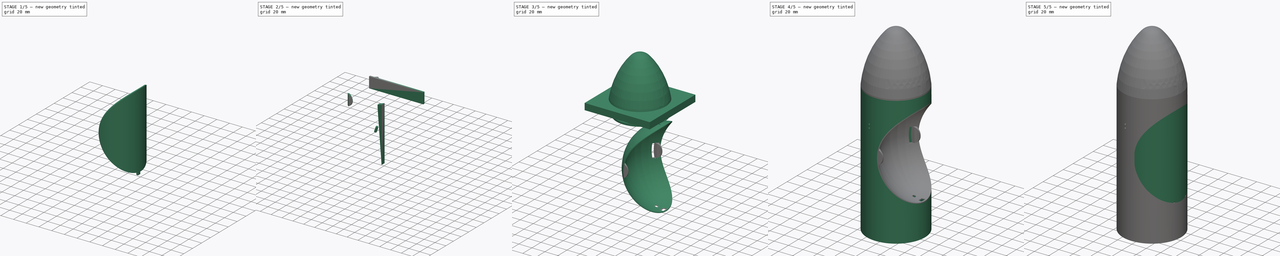
[diagram: build sequence overview — one tinted view per stage of 5, left to right]
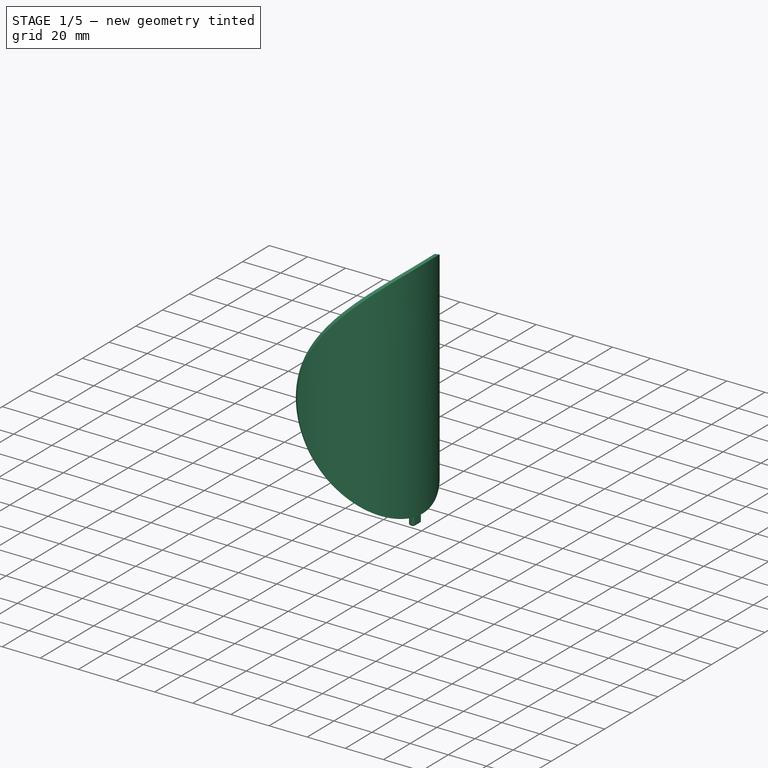
[diagram: stage 1 of 5 — iso view after this stage's code; geometry added in this stage tinted green]
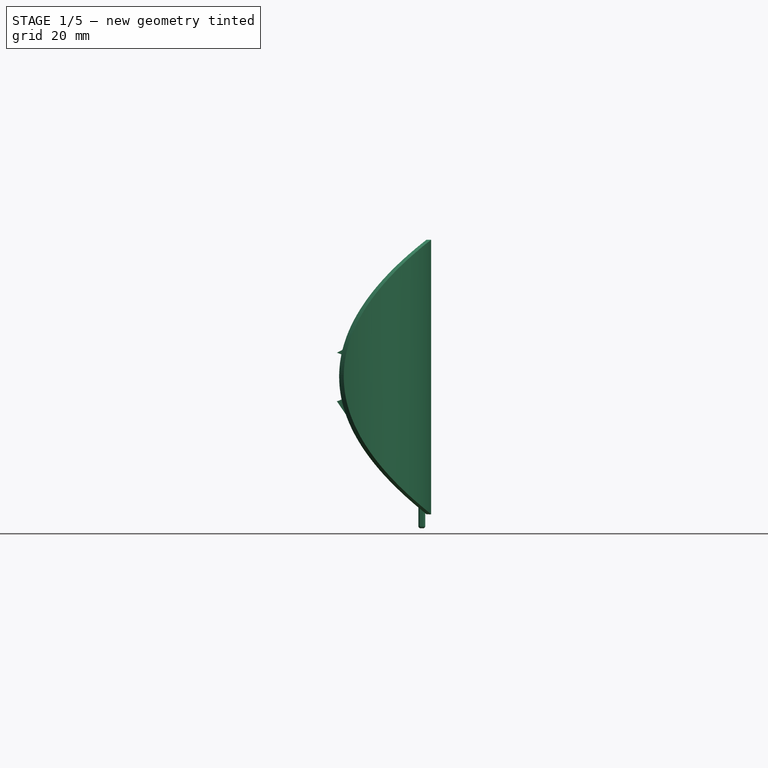
[diagram: stage 1 of 5 — front view after this stage's code; geometry added in this stage tinted green]
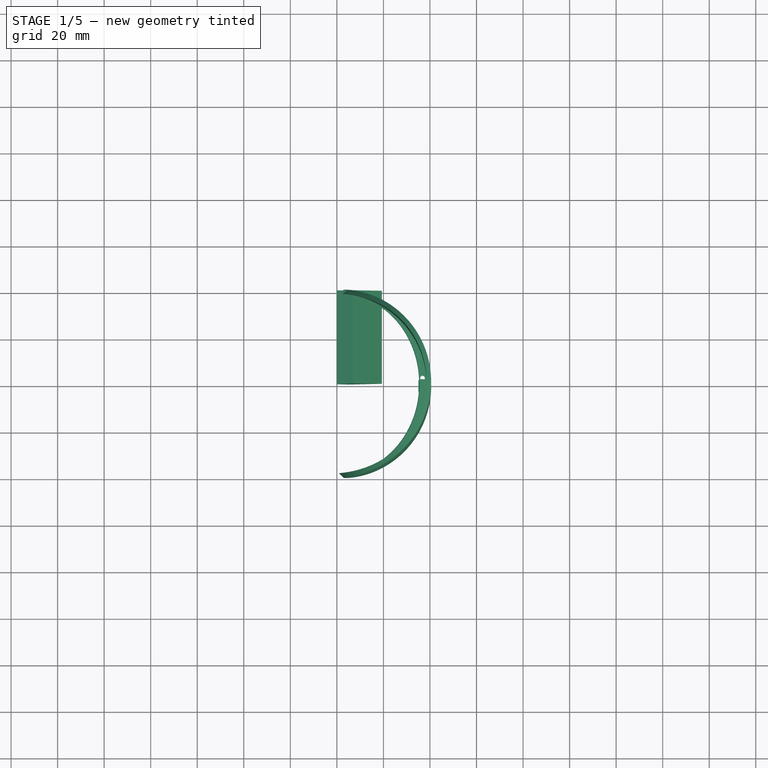
[diagram: stage 1 of 5 — top view after this stage's code; geometry added in this stage tinted green]
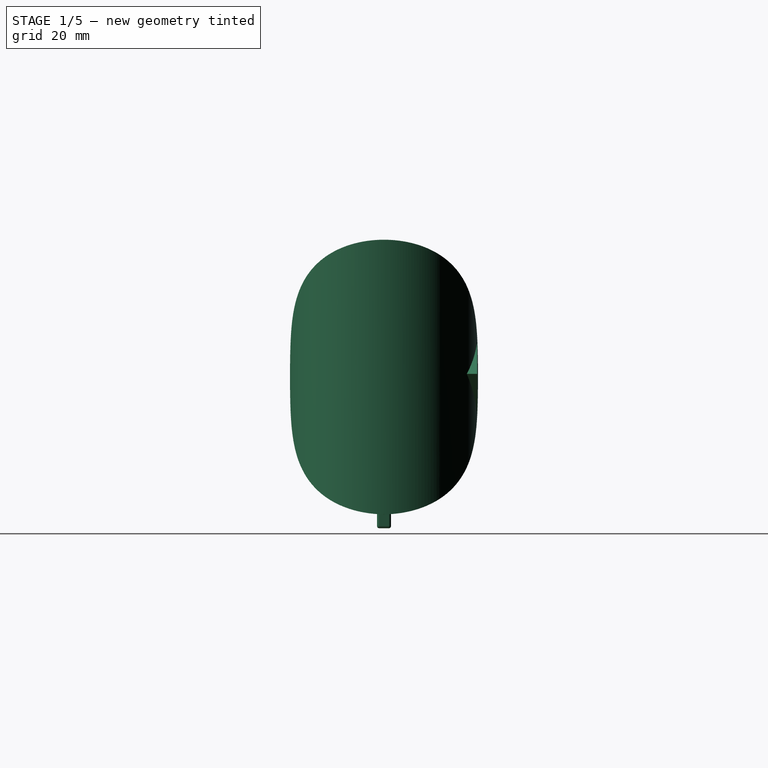
[diagram: stage 1 of 5 — right view after this stage's code; geometry added in this stage tinted green]
FCSTD DOCUMENT  (FreeCAD 0.16R6706 (Git))
Label: Phoenix3D_Apollinaris
License: All rights reserved
LicenseURL: http://en.wikipedia.org/wiki/All_rights_reserved
objects: Sketcher::SketchObject×21, Part::Cut×19, Part::MultiFuse×13, PartDesign::Pad×9, Part::Cylinder×9, PartDesign::Revolution×7, Part::Box×5, PartDesign::Fillet×5, Part::MultiCommon×3, PartDesign::Pocket×3, Part::Mirroring×2, Part::Wedge×2, Part::Fillet×2, Part::Helix×2, Part::Sweep×2
note: 123 computed .brp shape members not serialized (recipe doc carries the construction recipe); baked Part::Feature solids carry a one-line shape summary decoded from their .brp

FEATURE [Sketcher::SketchObject] Sketch022
  Placement = pos=(0,0,0) rot=(1,0,0;1.5708rad)
  sketch-geometry (7):
    g0: ArcOfEllipse CenterX=38.7894 CenterY=104.999 CenterZ=0 NormalX=0 NormalY=0 NormalZ=1 MajorRadius=59.003 MinorRadius=55.0157 AngleXU=1.54693 StartAngle=3.17101 EndAngle=6.30495
    g1: LineSegment [constr] StartX=-16.2106 StartY=106.312 StartZ=0 EndX=93.7894 EndY=103.687 EndZ=0
    g2: GeomPoint [constr] X=39.2982 Y=126.315 Z=0
    g3: GeomPoint [constr] X=38.2807 Y=83.6834 Z=0
    g4: LineSegment [constr] StartX=39.0001 StartY=46 StartZ=0 EndX=39.0001 EndY=164 EndZ=0
    g5: LineSegment [constr] StartX=92.7894 StartY=105 StartZ=0 EndX=-15 EndY=105 EndZ=0
    g6: LineSegment StartX=39.0001 StartY=164 StartZ=0 EndX=39.0001 EndY=46 EndZ=0
  constraints (12):
    c: InternalAlignment(g1,g0)
    c: InternalAlignment(g2,g0)
    c: InternalAlignment(g3,g0)
    c: DistanceY(g0,g0) = 118
    c: DistanceX(g0,g1) = 55
    c: DistanceX(g5,g1) = 1
    c: DistanceY(g-1,g0) = 164
    c: Coincident(g4,g0)
    c: Coincident(g0,g4)
    c: Coincident(g6,g0)
    c: Coincident(g6,g0)
    c: Vertical(g6)
FEATURE [Part::Cylinder] Cylinder006  label="Zylinder003"
  Angle = 360
  Height = 180
  Placement = pos=(-1,0,0) rot=(0,0,1;0rad)
  Radius = 40.5
FEATURE [PartDesign::Revolution] Revolution005
  Angle = 360
  Axis = (0,0,118)
  Base = (39.0001,0,46)
  Placement = pos=(0,0,0) rot=(1,0,0;1.5708rad)
  ReferenceAxis = -> Sketch022 [Axis1]
  Reversed = true
  Sketch = -> Sketch022
FEATURE [Part::MultiCommon] Common001  label="Tür001"
  Placement = pos=(1,0,0) rot=(0,0,1;0rad)
  Shapes = -> [Revolution005,Cylinder006]
FEATURE [Part::Cylinder] Cylinder007  label="Zylinder004"
  Angle = 360
  Height = 180
  Radius = 38.5
FEATURE [PartDesign::Fillet] Fillet005
  Placement = pos=(35,-3,40) rot=(0,0,1;0rad)
  Radius = 1
FEATURE [Part::Cut] Cut025
  Base = -> Common001
  Tool = -> Cylinder007
FEATURE [Sketcher::SketchObject] Sketch024
  Placement = pos=(1.2,0,108) rot=(0,0,1;0rad)
  sketch-geometry (2):
    g0: Circle CenterX=35.6 CenterY=2.5 CenterZ=0 NormalX=0 NormalY=0 NormalZ=1 Radius=1
    g1: Circle CenterX=35.6 CenterY=-2.5 CenterZ=0 NormalX=0 NormalY=0 NormalZ=1 Radius=1
  constraints (5):
    c: Symmetric(g1,g0,g-1)
    c: DistanceY(g1,g0) = 5
    c: Equal(g0,g1)
    c: Radius(g0) = 1
    c: DistanceX(g-1,g0) = 35.6
FEATURE [PartDesign::Pocket] Pocket001
  Length = 5
  Placement = pos=(1.2,0,105) rot=(0,0,1;0rad)
  Sketch = -> Sketch024
  Type = 0
FEATURE [Part::Fillet] Fillet006
  Base = -> Pocket001
  Edges = 2 edges r=0.5: [Edge3,Edge4]
FEATURE [Sketcher::SketchObject] Sketch025
  Placement = pos=(34,0,0) rot=(0.57735,0.57735,0.57735;2.0944rad)
  sketch-geometry (6):
    g0: LineSegment StartX=-12.5 StartY=46.5 StartZ=0 EndX=-11 EndY=49.0981 EndZ=0
    g1: LineSegment StartX=-11 StartY=49.0981 StartZ=0 EndX=-9.5 EndY=46.5 EndZ=0
    g2: LineSegment StartX=-9.5 StartY=46.5 StartZ=0 EndX=-12.5 EndY=46.5 EndZ=0
    g3: LineSegment StartX=9.5 StartY=46.5 StartZ=0 EndX=11 EndY=49.0981 EndZ=0
    g4: LineSegment StartX=11 StartY=49.0981 StartZ=0 EndX=12.5 EndY=46.5 EndZ=0
    g5: LineSegment StartX=12.5 StartY=46.5 StartZ=0 EndX=9.5 EndY=46.5 EndZ=0
  constraints (17):
    c: Coincident(g0,g1)
    c: Coincident(g1,g2)
    c: Coincident(g2,g0)
    c: Horizontal(g2)
    c: Equal(g2,g0)
    c: Equal(g0,g1)
    c: DistanceX(g2,g2) = 3
    c: Coincident(g3,g4)
    c: Coincident(g4,g5)
    c: Coincident(g5,g3)
    c: Equal(g4,g3)
    c: Equal(g3,g5)
    c: Horizontal(g5)
    c: Equal(g5,g2)
    c: Symmetric(g3,g1,g-2)
    c: DistanceY(g-1,g1) = 46.5
    c: DistanceX(g1,g-1) = 9.5
FEATURE [PartDesign::Pad] Pad011  label="Ritze001"
  Length = 10
  Length2 = 100
  Placement = pos=(34,0,0) rot=(0.57735,0.57735,0.57735;2.0944rad)
  Sketch = -> Sketch025
  Type = 0
FEATURE [Part::Cut] Cut026
  Base = -> Cut025
  Tool = -> Pad011
FEATURE [Sketcher::SketchObject] Sketch027
  Placement = pos=(0,0,0) rot=(1,0,0;1.5708rad)
  sketch-geometry (10):
    g0: LineSegment [constr] StartX=-16.9433 StartY=105 StartZ=0 EndX=26.7927 EndY=105 EndZ=0
    g1: ArcOfEllipse CenterX=-2.69573 CenterY=105 CenterZ=0 NormalX=0 NormalY=0 NormalZ=1 MajorRadius=10.7493 MinorRadius=10.7231 AngleXU=1.5708 StartAngle=3.39571 EndAngle=6.02906
    g2: LineSegment [constr] StartX=-2.69573 StartY=115.749 StartZ=0 EndX=-2.69573 EndY=94.2507 EndZ=0
    g3: LineSegment [constr] StartX=-13.4188 StartY=105 StartZ=0 EndX=8.02735 EndY=105 EndZ=0
    g4: GeomPoint [constr] X=-2.69573 Y=105.751 Z=0
    g5: GeomPoint [constr] X=-2.69573 Y=104.249 Z=0
    g6: LineSegment StartX=0 StartY=115.404 StartZ=0 EndX=6.87923 EndY=119.123 EndZ=0
    g7: LineSegment StartX=6.87923 StartY=119.123 StartZ=0 EndX=19.3389 EndY=106.345 EndZ=0
    g8: LineSegment StartX=19.3389 StartY=106.345 StartZ=0 EndX=4.71785 EndY=87.5924 EndZ=0
    g9: LineSegment StartX=4.71785 StartY=87.5924 StartZ=0 EndX=0 EndY=94.5959 EndZ=0
  constraints (12):
    c: Horizontal(g0)
    c: DistanceY(g-1,g0) = 105
    c: InternalAlignment(g2-g5 -> g1) x4
    c: PointOnObject(g1,g0)
    c: Horizontal(g3)
    c: PointOnObject(g1,g-2)
    c: PointOnObject(g1,g-2)
    c: Coincident(g6,g1)
    c: Coincident(g6,g7)
    c: Coincident(g7,g8)
    c: Coincident(g8,g9)
    c: Coincident(g9,g1)
FEATURE [PartDesign::Pad] Pad012
  Length = 40
  Length2 = 100
  Placement = pos=(0,0,0) rot=(1,0,0;1.5708rad)
  Reversed = true
  Sketch = -> Sketch027
  Type = 0
FEATURE [Sketcher::SketchObject] Sketch028
  Placement = pos=(0,0,0) rot=(1,0,0;1.5708rad)
  sketch-geometry (7):
    g0: ArcOfEllipse CenterX=38.7894 CenterY=104.999 CenterZ=0 NormalX=0 NormalY=0 NormalZ=1 MajorRadius=59.003 MinorRadius=55.0157 AngleXU=1.54693 StartAngle=3.17101 EndAngle=6.30495
    g1: LineSegment [constr] StartX=-16.2106 StartY=106.312 StartZ=0 EndX=93.7894 EndY=103.687 EndZ=0
    g2: GeomPoint [constr] X=39.2982 Y=126.315 Z=0
    g3: GeomPoint [constr] X=38.2807 Y=83.6834 Z=0
    g4: LineSegment [constr] StartX=39.0001 StartY=46 StartZ=0 EndX=39.0001 EndY=164 EndZ=0
    g5: LineSegment [constr] StartX=92.7894 StartY=105 StartZ=0 EndX=-15 EndY=105 EndZ=0
    g6: LineSegment StartX=39.0001 StartY=164 StartZ=0 EndX=39.0001 EndY=46 EndZ=0
  constraints (12):
    c: InternalAlignment(g1,g0)
    c: InternalAlignment(g2,g0)
    c: InternalAlignment(g3,g0)
    c: DistanceY(g0,g0) = 118
    c: DistanceX(g0,g1) = 55
    c: DistanceX(g5,g1) = 1
    c: DistanceY(g-1,g0) = 164
    c: Coincident(g4,g0)
    c: Coincident(g0,g4)
    c: Coincident(g6,g0)
    c: Coincident(g6,g0)
    c: Vertical(g6)
FEATURE [Part::Cylinder] Cylinder008  label="Zylinder005"
  Angle = 360
  Height = 180
  Placement = pos=(-1,0,0) rot=(0,0,1;0rad)
  Radius = 40.5
FEATURE [PartDesign::Revolution] Revolution006
  Angle = 360
  Axis = (0,0,118)
  Base = (39.0001,0,46)
  Placement = pos=(0,0,0) rot=(1,0,0;1.5708rad)
  ReferenceAxis = -> Sketch028 [Axis1]
  Reversed = true
  Sketch = -> Sketch028
FEATURE [Part::MultiCommon] Common002  label="Tür002"
  Placement = pos=(1,0,0) rot=(0,0,1;0rad)
  Shapes = -> [Revolution006,Cylinder008]
FEATURE [Part::Cylinder] Cylinder009  label="Zylinder006"
  Angle = 360
  Height = 180
  Radius = 38.5
FEATURE [Part::Cut] Cut029
  Base = -> Common002
  Tool = -> Cylinder009
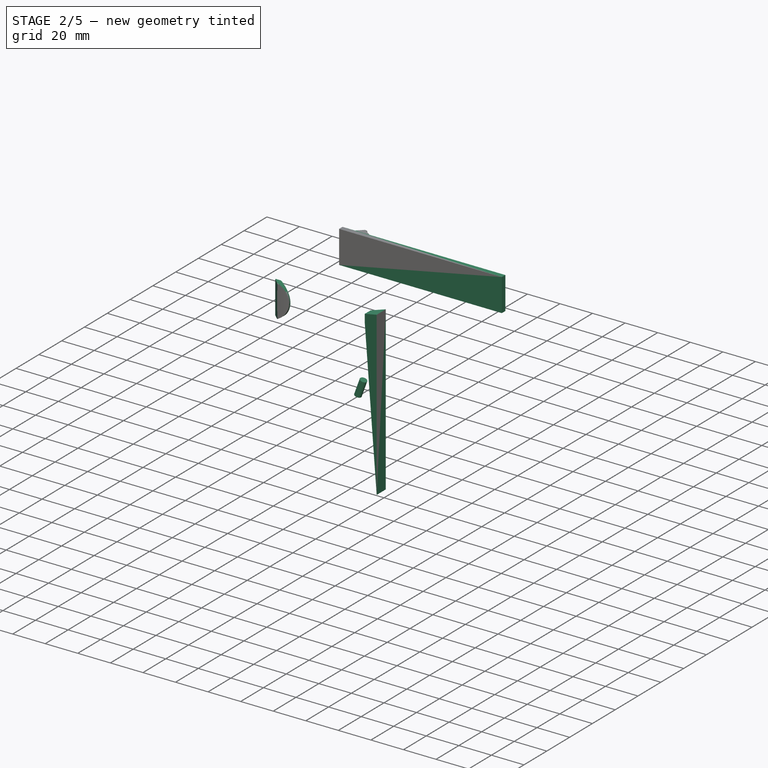
[diagram: stage 2 of 5 — iso view after this stage's code; geometry added in this stage tinted green]
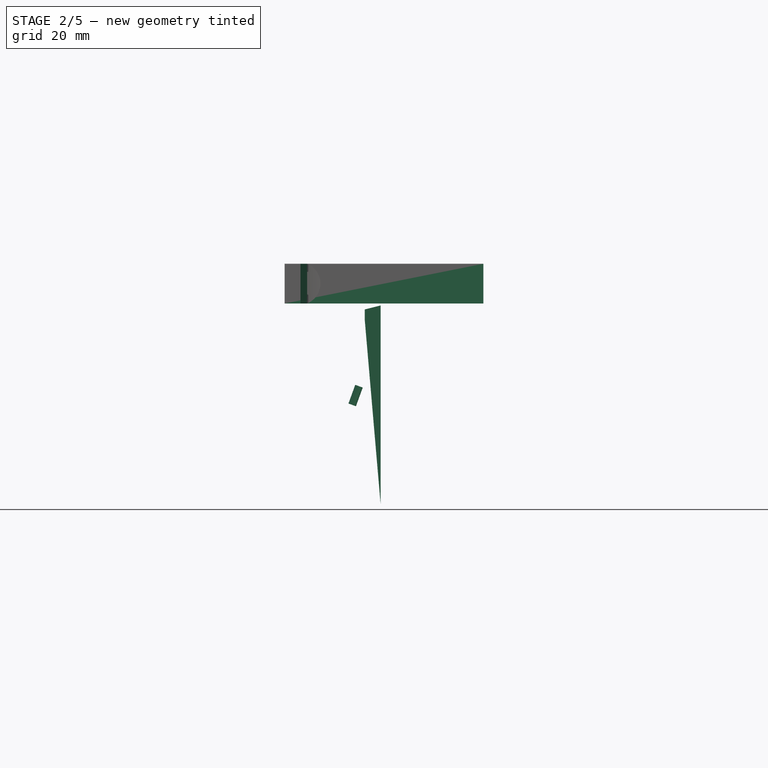
[diagram: stage 2 of 5 — front view after this stage's code; geometry added in this stage tinted green]
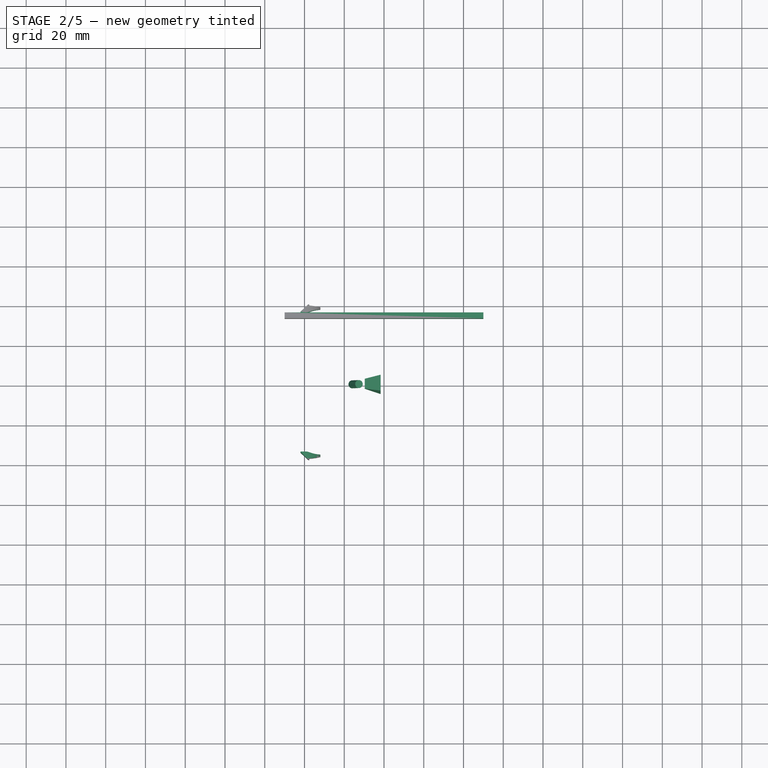
[diagram: stage 2 of 5 — top view after this stage's code; geometry added in this stage tinted green]
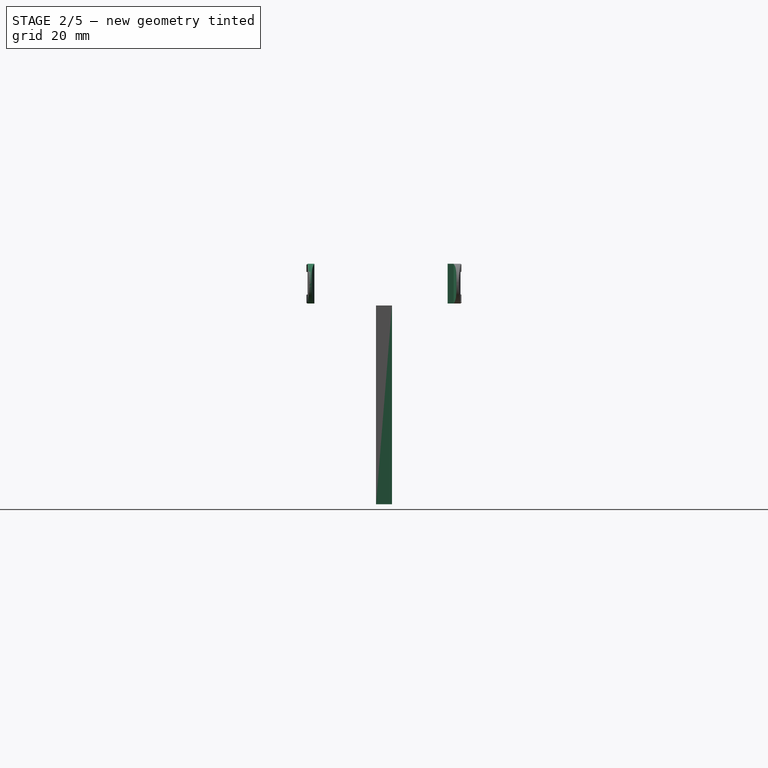
[diagram: stage 2 of 5 — right view after this stage's code; geometry added in this stage tinted green]
FEATURE [Part::Box] Box  label="Federlasche1"
  Height = 20
  Length = 100
  Placement = pos=(-10,32,95) rot=(0,0,1;0rad)
  Width = 3
FEATURE [Part::Wedge] Wedge003  label="Keil003"
  Placement = pos=(38.3,4,94) rot=(0.707107,-0.707107,0;3.14159rad)
  X2max = 7
  X2min = 2
  Xmax = 8
  Xmin = 0
  Ymax = 8
  Ymin = 0
  Z2max = 7
  Z2min = 2
  Zmax = 100
  Zmin = 0
FEATURE [Part::Cylinder] Cylinder005  label="Zylinder002"
  Angle = 360
  Height = 10
  Placement = pos=(24,0,44) rot=(0,1,0;0.349066rad)
  Radius = 2
FEATURE [Part::Box] Box003  label="Würfel001"
  Height = 20
  Length = 10
  Placement = pos=(-2,34,95) rot=(0,0,1;0rad)
  Width = 5
FEATURE [Part::Box] Box004  label="Federlasche003"
  Height = 20
  Length = 100
  Placement = pos=(-10,32,95) rot=(0,0,1;0rad)
  Width = 3
FEATURE [Part::Cut] Cut024
  Base = -> Box003
  Tool = -> Box004
FEATURE [PartDesign::Fillet] Fillet004
  Placement = pos=(0,0,51) rot=(0,0,1;0rad)
  Radius = 1
FEATURE [Part::MultiFuse] Fusion016  label="Haken001"
  Shapes = -> [Fillet004,Fillet005]
FEATURE [Part::MultiFuse] Fusion017  label="Fallschirmtüre001"
  Shapes = -> [Cut026,Fusion016,Fillet006]
FEATURE [Part::Cut] Cut027
  Base = -> Cut024
  Tool = -> Fusion017
FEATURE [Sketcher::SketchObject] Sketch026
  ExternalGeometry = -> [Cut027]
  Placement = pos=(0,0,95) rot=(1,0,0;3.14159rad)
  Support = -> Cut027 [Face4]
  sketch-geometry (8):
    g0: LineSegment StartX=-2.23089 StartY=-39.1289 StartZ=0 EndX=-2.23089 EndY=-35.1474 EndZ=0
    g1: LineSegment StartX=-2.23089 StartY=-35.1474 StartZ=0 EndX=2.01028 EndY=-39.1289 EndZ=0
    g2: LineSegment StartX=2.01028 StartY=-39.1289 StartZ=0 EndX=-2.23089 EndY=-39.1289 EndZ=0
    g3: LineSegment StartX=-83.3931 StartY=2.54093 StartZ=0 EndX=1.56733 EndY=-35 EndZ=0
    g4: LineSegment StartX=8 StartY=-36.43 StartZ=0 EndX=41.4372 EndY=-37.146 EndZ=0
    g5: LineSegment StartX=41.4372 StartY=-37.146 StartZ=0 EndX=13.4846 EndY=-30.7703 EndZ=0
    g6: LineSegment StartX=13.4846 StartY=-30.7703 StartZ=0 EndX=-83.3931 EndY=2.54093 EndZ=0
    g7: ArcOfCircle CenterX=8.35983 CenterY=-19.6276 CenterZ=0 NormalX=0 NormalY=0 NormalZ=1 Radius=16.8062 StartAngle=4.29632 EndAngle=4.69098
  constraints (12):
    c: Vertical(g0)
    c: Coincident(g0,g1)
    c: Coincident(g1,g2)
    c: Coincident(g2,g0)
    c: Horizontal(g2)
    c: Coincident(g4,g5)
    c: Coincident(g5,g6)
    c: Coincident(g3,g6)
    c: Tangent(g4,g7) = -1.5708
    c: Tangent(g3,g7) = -1.5708
    c: PointOnObject(g4,g-4)
    c: PointOnObject(g3,g-3)
FEATURE [PartDesign::Pocket] Pocket002
  Length = 20
  Sketch = -> Sketch026
  Type = 0
FEATURE [PartDesign::Fillet] Fillet
  Base = -> Pocket002 [Edge24]
  Radius = 5
FEATURE [Part::Cut] Cut028
  Base = -> Fillet
  Tool = -> Pad012
FEATURE [Part::Cut] Cut030  label="Seitenlasche"
  Base = -> Cut028
  Tool = -> Cut029
FEATURE [Part::Mirroring] Part__Mirroring001  label="Seitenlasche (Mirror #2)"
  Base = (0,0,0)
  Normal = (0,1,0)
  Source = -> Cut030
FEATURE [Part::MultiFuse] Fusion018
  Shapes = -> [Part__Mirroring001,Cut030]
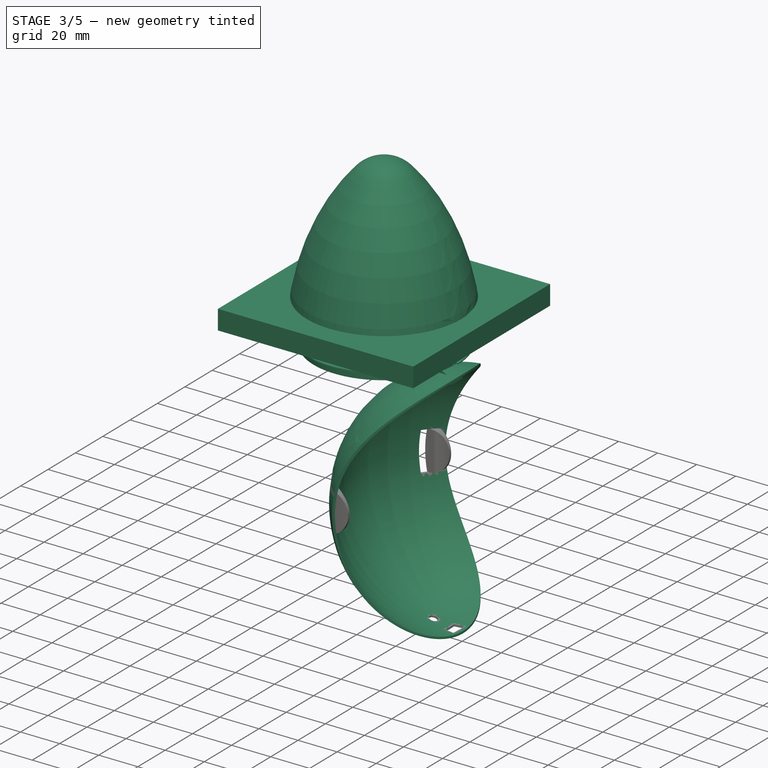
[diagram: stage 3 of 5 — iso view after this stage's code; geometry added in this stage tinted green]
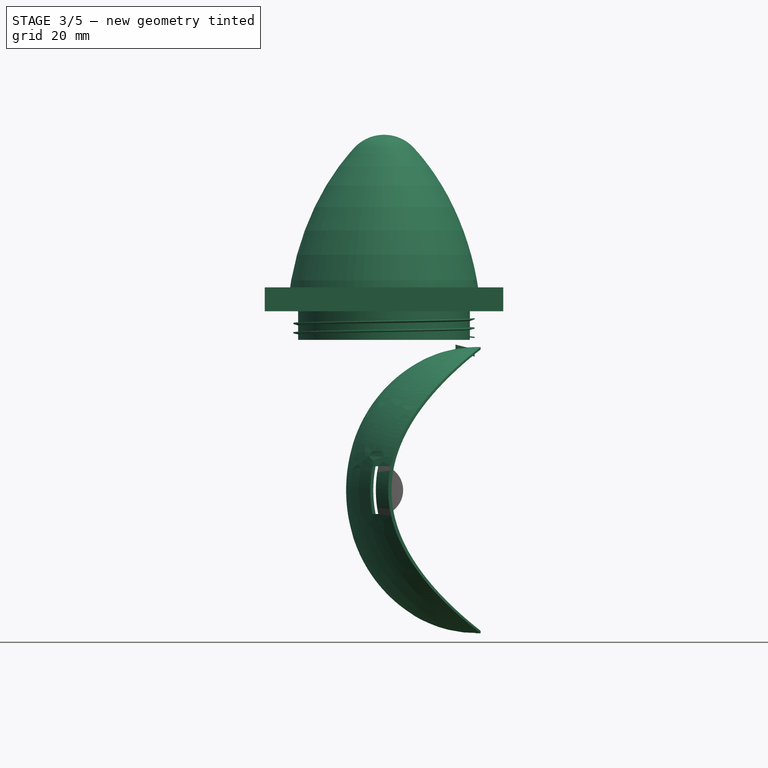
[diagram: stage 3 of 5 — front view after this stage's code; geometry added in this stage tinted green]
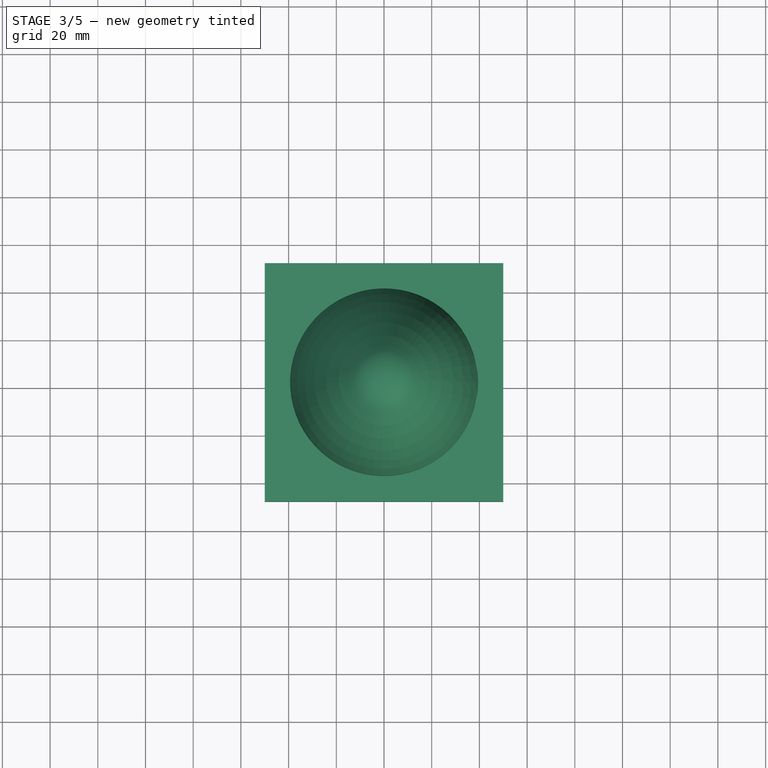
[diagram: stage 3 of 5 — top view after this stage's code; geometry added in this stage tinted green]
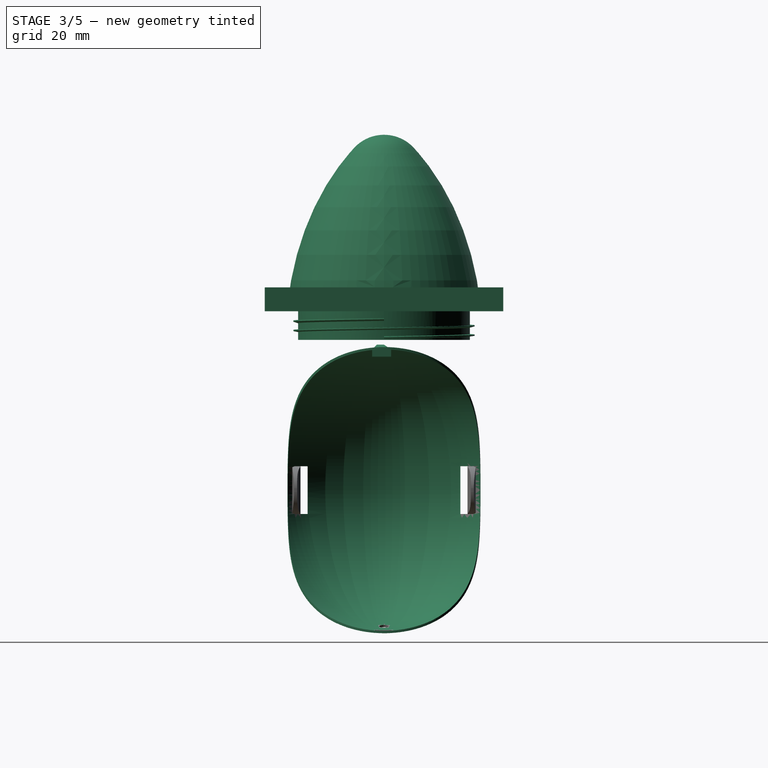
[diagram: stage 3 of 5 — right view after this stage's code; geometry added in this stage tinted green]
FEATURE [Sketcher::SketchObject] Sketch001
  Placement = pos=(0,0,0) rot=(1,0,0;1.5708rad)
  sketch-geometry (13):
    g0: LineSegment [constr] StartX=39 StartY=74.9015 StartZ=0 EndX=39 EndY=-52.964 EndZ=0
    g1: ArcOfEllipse CenterX=39 CenterY=105 CenterZ=0 NormalX=0 NormalY=0 NormalZ=1 MajorRadius=60 MinorRadius=55 AngleXU=1.5708 StartAngle=3.14159 EndAngle=6.28319
    g2: LineSegment [constr] StartX=39 StartY=165 StartZ=0 EndX=39 EndY=45 EndZ=0
    g3: LineSegment [constr] StartX=-16 StartY=105 StartZ=0 EndX=94 EndY=105 EndZ=0
    g4: GeomPoint [constr] X=39 Y=128.979 Z=0
    g5: GeomPoint [constr] X=39 Y=81.0208 Z=0
    g6: ArcOfEllipse CenterX=39 CenterY=105 CenterZ=0 NormalX=0 NormalY=0 NormalZ=1 MajorRadius=59 MinorRadius=54 AngleXU=-1.5708 StartAngle=0 EndAngle=3.14159
    g7: LineSegment [constr] StartX=39 StartY=46 StartZ=0 EndX=39 EndY=164 EndZ=0
    g8: LineSegment [constr] StartX=93 StartY=105 StartZ=0 EndX=-15 EndY=105 EndZ=0
    g9: GeomPoint [constr] X=39 Y=81.2303 Z=0
    g10: GeomPoint [constr] X=39 Y=128.77 Z=0
    g11: LineSegment StartX=39 StartY=46 StartZ=0 EndX=39 EndY=45 EndZ=0
    g12: LineSegment StartX=39 StartY=165 StartZ=0 EndX=39 EndY=164 EndZ=0
  constraints (21):
    c: Vertical(g0)
    c: DistanceX(g-1,g0) = 39
    c: InternalAlignment(g2-g5 -> g1) x4
    c: PointOnObject(g1,g0)
    c: PointOnObject(g1,g0)
    c: PointOnObject(g1,g0)
    c: Vertical(g2)
    c: DistanceY(g1,g1) = 120
    c: DistanceX(g1,g3) = 55
    c: InternalAlignment(g7-g10 -> g6) x4
    c: Coincident(g6,g1)
    c: PointOnObject(g6,g7)
    c: PointOnObject(g6,g2)
    c: PointOnObject(g6,g0)
    c: DistanceX(g8,g3) = 1
    c: DistanceY(g6,g1) = 1
    c: Coincident(g11,g6)
    c: Coincident(g11,g1)
    c: Coincident(g12,g1)
    c: Coincident(g12,g6)
    c: DistanceY(g-1,g1) = 165
FEATURE [PartDesign::Revolution] Revolution  label="Öffnung"
  Angle = 360
  Axis = (0,0,-127.866)
  Base = (39,0,74.9015)
  Placement = pos=(0,0,0) rot=(1,0,0;1.5708rad)
  ReferenceAxis = -> Sketch001 [Axis0]
  Sketch = -> Sketch001
FEATURE [Sketcher::SketchObject] Sketch002
  sketch-geometry (5):
    g0: LineSegment StartX=-100.92 StartY=65.4026 StartZ=0 EndX=100.92 EndY=65.4026 EndZ=0
    g1: LineSegment StartX=100.92 StartY=65.4026 StartZ=0 EndX=100.92 EndY=-65.4026 EndZ=0
    g2: LineSegment StartX=100.92 StartY=-65.4026 StartZ=0 EndX=-100.92 EndY=-65.4026 EndZ=0
    g3: LineSegment StartX=-100.92 StartY=-65.4026 StartZ=0 EndX=-100.92 EndY=65.4026 EndZ=0
    g4: Circle CenterX=0 CenterY=0 CenterZ=0 NormalX=0 NormalY=0 NormalZ=1 Radius=40.5
  constraints (12):
    c: Coincident(g0,g1)
    c: Coincident(g1,g2)
    c: Coincident(g2,g3)
    c: Coincident(g3,g0)
    c: Horizontal(g0)
    c: Horizontal(g2)
    c: Vertical(g1)
    c: Vertical(g3)
    c: Symmetric(g0,g2,g-1)
    c: Symmetric(g0,g0,g-2)
    c: Coincident(g4,g-1)
    c: Radius(g4) = 40.5
FEATURE [PartDesign::Pad] Pad001
  Length = 190
  Length2 = 100
  Sketch = -> Sketch002
  Type = 0
FEATURE [Part::Cut] Cut  label="Innenseite"
  Base = -> Revolution
  Tool = -> Pad001
FEATURE [Part::Box] Box001  label="Federlasche2"
  Height = 20
  Length = 100
  Placement = pos=(-10,-35,95) rot=(0,0,1;0rad)
  Width = 3
FEATURE [Part::Cut] Cut002
  Base = -> Cut
  Tool = -> Box
FEATURE [Part::Cut] Cut003  label="Innenseite001"
  Base = -> Cut002
  Tool = -> Box001
FEATURE [Part::Wedge] Wedge002  label="Keil002"
  Placement = pos=(38,-5,161) rot=(0,0,1;1.5708rad)
  X2max = 5
  X2min = 2
  Xmax = 8
  Xmin = 0
  Ymax = 8
  Ymin = 0
  Z2max = 5
  Z2min = 2
  Zmax = 3
  Zmin = 0
FEATURE [Part::Cut] Cut010
  Base = -> Cut003
  Tool = -> Wedge003
FEATURE [Part::MultiFuse] Fusion012  label="Cut011"
  Shapes = -> [Wedge002,Cut010]
FEATURE [Part::Cut] Cut022  label="Fallschirmkammer"
  Base = -> Fusion012
  Tool = -> Cylinder005
FEATURE [Part::Box] Box002  label="Würfel"
  Height = 10
  Length = 100
  Placement = pos=(-50,-50,180) rot=(0,0,1;0rad)
  Width = 100
FEATURE [Part::Helix] Helix001
  Angle = 0
  Height = 8
  LocalCoord = 0
  Pitch = 4
  Placement = pos=(0,0,174) rot=(0,0,1;0rad)
  Radius = 38.5
  Style = 1
FEATURE [Sketcher::SketchObject] Sketch019
  Placement = pos=(0,0,0) rot=(1,0,0;1.5708rad)
  sketch-geometry (4):
    g0: LineSegment StartX=36 StartY=174.5 StartZ=0 EndX=36 EndY=173.5 EndZ=0
    g1: LineSegment StartX=36 StartY=173.5 StartZ=0 EndX=38 EndY=173.75 EndZ=0
    g2: LineSegment StartX=38 StartY=173.75 StartZ=0 EndX=38 EndY=174.25 EndZ=0
    g3: LineSegment StartX=38 StartY=174.25 StartZ=0 EndX=36 EndY=174.5 EndZ=0
  constraints (12):
    c: Vertical(g0)
    c: Coincident(g0,g1)
    c: Coincident(g1,g2)
    c: Vertical(g2)
    c: Coincident(g2,g3)
    c: Coincident(g3,g0)
    c: DistanceY(g0,g0) = 1
    c: DistanceX(g0,g2) = 2
    c: DistanceY(g2,g2) = 0.5
    c: DistanceY(g0,g1) = 0.25
    c: DistanceY(g-1,g0) = 174.5
    c: DistanceX(g0) = 36
FEATURE [Part::Sweep] Sweep001  label="Gewinde_Spitze"
  Frenet = false
  Placement = pos=(0,0,-2) rot=(0,0,1;0rad)
  Sections = -> [Sketch019]
  Solid = true
  Spine = -> Helix001 [Edge1,Edge2]
  Transition = 1
FEATURE [Sketcher::SketchObject] Sketch020
  Placement = pos=(0,0,185) rot=(1,0,0;1.5708rad)
  sketch-geometry (21):
    g0: ArcOfEllipse CenterX=-37.5893 CenterY=-13.1434 CenterZ=0 NormalX=0 NormalY=0 NormalZ=1 MajorRadius=103.259 MinorRadius=78.7297 AngleXU=-1.5708 StartAngle=1.69843 EndAngle=2.45237
    g1: LineSegment [constr] StartX=-37.5893 StartY=-116.402 StartZ=0 EndX=-37.5893 EndY=90.1155 EndZ=0
    g2: LineSegment [constr] StartX=41.1404 StartY=-13.1434 StartZ=0 EndX=-116.319 EndY=-13.1434 EndZ=0
    g3: GeomPoint [constr] X=-37.5893 Y=-79.9569 Z=0
    g4: GeomPoint [constr] X=-37.5893 Y=53.6701 Z=0
    g5: ArcOfCircle CenterX=0 CenterY=55 CenterZ=0 NormalX=0 NormalY=0 NormalZ=1 Radius=17 StartAngle=0.746598 EndAngle=1.5708
    g6: ArcOfEllipse CenterX=-37.5893 CenterY=-13.1434 CenterZ=0 NormalX=0 NormalY=0 NormalZ=1 MajorRadius=101.215 MinorRadius=76.7391 AngleXU=-1.5708 StartAngle=1.70102 EndAngle=2.45577
    g7: LineSegment [constr] StartX=-37.5893 StartY=-114.359 StartZ=0 EndX=-37.5893 EndY=88.0719 EndZ=0
    g8: LineSegment [constr] StartX=39.1498 StartY=-13.1434 StartZ=0 EndX=-114.328 EndY=-13.1434 EndZ=0
    g9: GeomPoint [constr] X=-37.5893 Y=-79.1407 Z=0
    g10: GeomPoint [constr] X=-37.5893 Y=52.8539 Z=0
    g11: LineSegment StartX=0 StartY=70 StartZ=0 EndX=0 EndY=72 EndZ=0
    g12: LineSegment [constr] StartX=11.0101 StartY=65.1872 StartZ=0 EndX=12.4781 EndY=66.5455 EndZ=0
    g13: GeomPoint [constr] X=12.4781 Y=66.5455 Z=0
    g14: LineSegment StartX=40.5 StartY=0 StartZ=0 EndX=40.5 EndY=-2 EndZ=0
    g15: LineSegment StartX=40.5 StartY=-2 StartZ=0 EndX=36 EndY=-2 EndZ=0
    g16: LineSegment StartX=36 StartY=-2 StartZ=0 EndX=36 EndY=-14 EndZ=0
    g17: LineSegment StartX=36 StartY=-14 StartZ=0 EndX=34 EndY=-14 EndZ=0
    g18: LineSegment StartX=34 StartY=0 StartZ=0 EndX=38.5 EndY=0 EndZ=0
    g19: ArcOfCircle CenterX=0 CenterY=55 CenterZ=0 NormalX=0 NormalY=0 NormalZ=1 Radius=15 StartAngle=0.746598 EndAngle=1.5708
    g20: LineSegment StartX=34 StartY=0 StartZ=0 EndX=34 EndY=-14 EndZ=0
  constraints (48):
    c: InternalAlignment(g1-g4 -> g0) x4
    c: Horizontal(g2)
    c: PointOnObject(g0,g-1)
    c: PointOnObject(g5,g-2)
    c: DistanceY(g-1,g5) = 72
    c: PointOnObject(g5,g-2)
    c: DistanceX(g-1,g0) = 40.5
    c: DistanceY(g0,g-1) = 13.1434
    c: DistanceX(g0,g-1) = 37.5893
    c: Radius(g5) = 17
    c: InternalAlignment(g7-g10 -> g6) x4
    c: Horizontal(g8)
    c: PointOnObject(g6,g-1)
    c: DistanceX(g6,g0) = 2
    c: Coincident(g6,g0)
    c: PointOnObject(g11,g-2)
    c: Tangent(g6,g6)
    c: Angle(g6,g2) = 0.523599
    c: Coincident(g11,g5)
    c: PointOnObject(g12,g0)
    c: Perpendicular(g5,g12)
    c: Coincident(g0,g5)
    c: PointOnObject(g13,g0)
    c: PointOnObject(g13,g5)
    c: Tangent(g0,g5,g13) = -1.5708
    c: Coincident(g6,g12)
    c: Distance(g12) = 2
    c: Vertical(g14)
    c: Coincident(g14,g15)
    c: Horizontal(g15)
    c: Coincident(g15,g16)
    c: Vertical(g16)
    c: Coincident(g16,g17)
    c: Horizontal(g17)
    c: Horizontal(g18)
    c: DistanceY(g14,g14) = 2
    c: Coincident(g18,g6)
    c: Coincident(g14,g0)
    c: DistanceX(g18,g18) = 4.5
    c: Coincident(g19,g5)
    c: Coincident(g19,g11)
    c: Radius(g19) = 15
    c: Coincident(g6,g19)
    c: DistanceX(g15,g15) = 4.5
    c: Coincident(g20,g17)
    c: Vertical(g20)
    c: DistanceY(g20,g20) = 14
    c: Coincident(g20,g18)
FEATURE [PartDesign::Revolution] Revolution004  label="Spitze"
  Angle = 360
  Axis = (0,0,1)
  Base = (0,0,185)
  Placement = pos=(0,0,185) rot=(1,0,0;1.5708rad)
  ReferenceAxis = -> Sketch020 [V_Axis]
  Reversed = true
  Sketch = -> Sketch020
FEATURE [Part::MultiFuse] Fusion001  label="SpitzemitGewinde"
  Placement = pos=(0,0,-3) rot=(0,0,1;0rad)
  Shapes = -> [Revolution004,Sweep001]
FEATURE [Sketcher::SketchObject] Sketch021
  Placement = pos=(0,0,-3) rot=(1,0,0;1.5708rad)
  sketch-geometry (7):
    g0: LineSegment StartX=0 StartY=255.822 StartZ=0 EndX=7.67559 EndY=254.726 EndZ=0
    g1: LineSegment StartX=7.67559 StartY=254.726 StartZ=0 EndX=15 EndY=247.228 EndZ=0
    g2: LineSegment StartX=15 StartY=247.228 StartZ=0 EndX=15 EndY=171 EndZ=0
    g3: LineSegment StartX=15 StartY=171 StartZ=0 EndX=-15 EndY=171 EndZ=0
    g4: LineSegment StartX=-15 StartY=171 StartZ=0 EndX=-15 EndY=247.228 EndZ=0
    g5: LineSegment StartX=-15 StartY=247.228 StartZ=0 EndX=-7.67559 EndY=254.726 EndZ=0
    g6: LineSegment StartX=-7.67559 StartY=254.726 StartZ=0 EndX=0 EndY=255.822 EndZ=0
  constraints (17):
    c: Coincident(g0,g1)
    c: PointOnObject(g0,g-2)
    c: Coincident(g1,g2)
    c: Vertical(g2)
    c: Coincident(g2,g3)
    c: Horizontal(g3)
    c: Coincident(g3,g4)
    c: Vertical(g4)
    c: Coincident(g4,g5)
    c: Coincident(g5,g6)
    c: Coincident(g6,g0)
    c: Symmetric(g3,g2,g-2)
    c: Equal(g4,g2)
    c: Equal(g1,g5)
    c: Equal(g0,g6)
    c: DistanceX(g3,g3) = 30
    c: DistanceY(g-1,g3) = 171
FEATURE [PartDesign::Pad] Pad009  label="Arduinobefestigung"
  Length = 2
  Length2 = 100
  Midplane = true
  Placement = pos=(0,0,-3) rot=(1,0,0;1.5708rad)
  Sketch = -> Sketch021
  Type = 0
FEATURE [Part::MultiFuse] Fusion015  label="Spitze001"
  Shapes = -> [Pad009,Fusion001]
FEATURE [Part::MultiFuse] Fusion019  label="Fallschirmkammer_Lasche"
  Shapes = -> [Fusion018,Cut022]
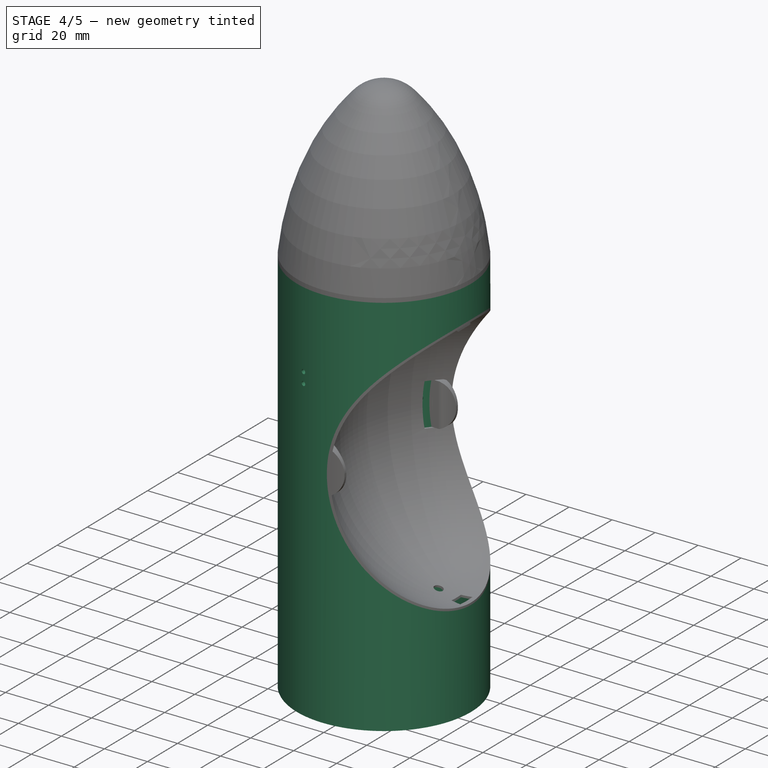
[diagram: stage 4 of 5 — iso view after this stage's code; geometry added in this stage tinted green]
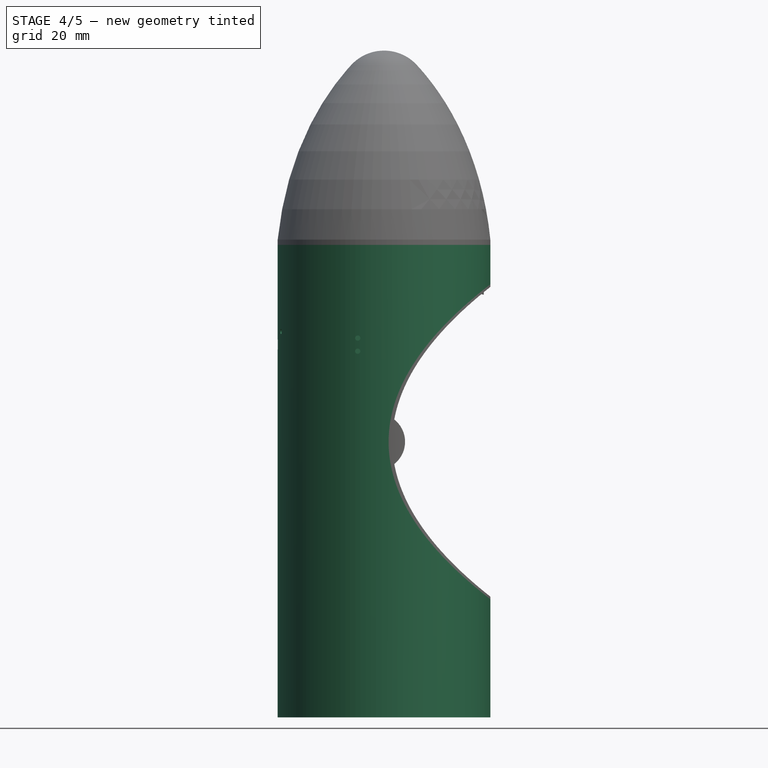
[diagram: stage 4 of 5 — front view after this stage's code; geometry added in this stage tinted green]
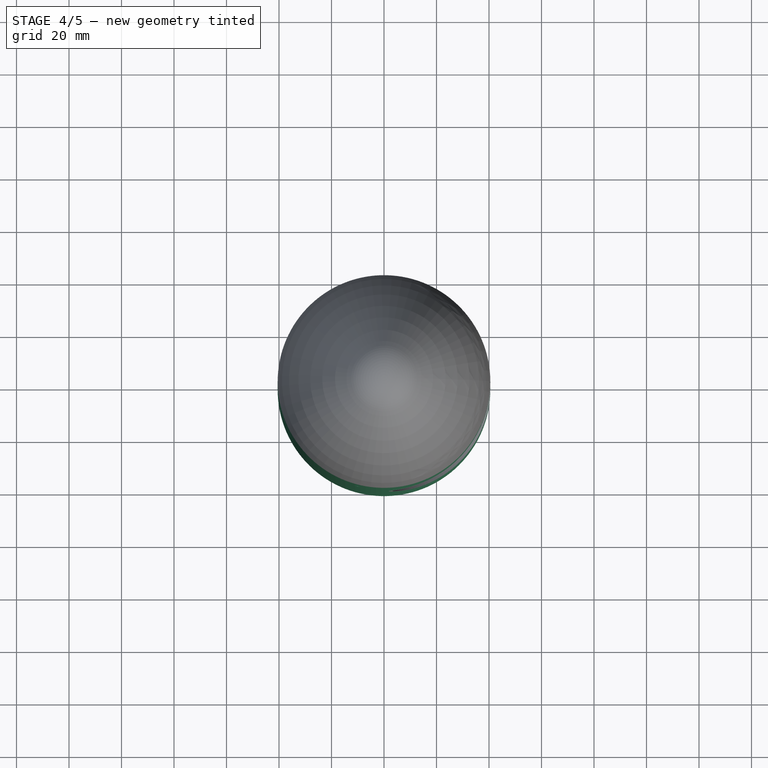
[diagram: stage 4 of 5 — top view after this stage's code; geometry added in this stage tinted green]
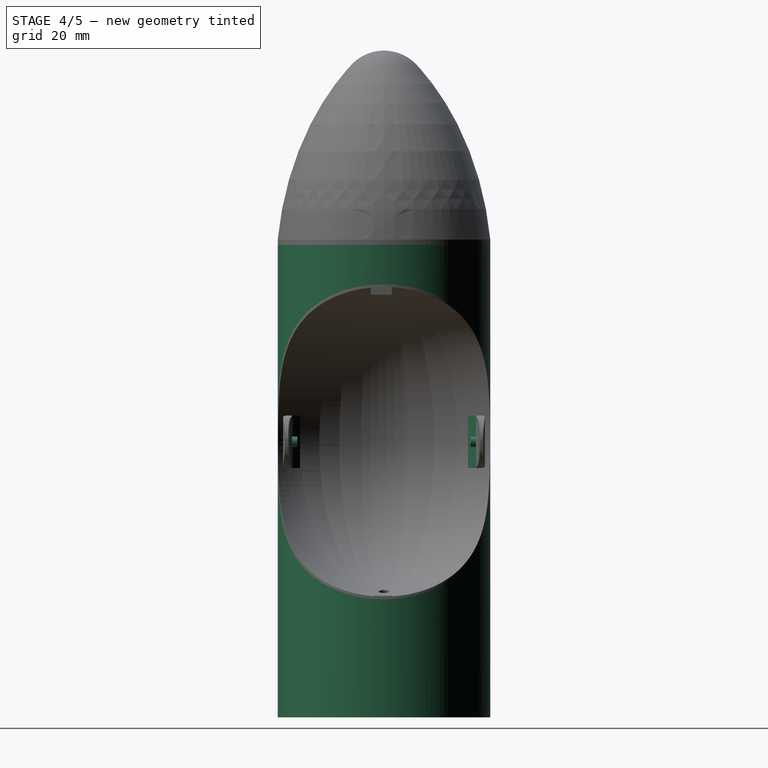
[diagram: stage 4 of 5 — right view after this stage's code; geometry added in this stage tinted green]
FEATURE [Sketcher::SketchObject] Sketch003
  Placement = pos=(0,0,0) rot=(1,0,0;1.5708rad)
  sketch-geometry (7):
    g0: LineSegment [constr] StartX=39 StartY=180 StartZ=0 EndX=39 EndY=-30 EndZ=0
    g1: ArcOfEllipse CenterX=39 CenterY=105 CenterZ=0 NormalX=0 NormalY=0 NormalZ=1 MajorRadius=60 MinorRadius=55 AngleXU=1.5708 StartAngle=3.14159 EndAngle=6.28319
    g2: LineSegment [constr] StartX=39 StartY=165 StartZ=0 EndX=39 EndY=45 EndZ=0
    g3: LineSegment [constr] StartX=-16 StartY=105 StartZ=0 EndX=94 EndY=105 EndZ=0
    g4: GeomPoint [constr] X=39 Y=128.979 Z=0
    g5: GeomPoint [constr] X=39 Y=81.0208 Z=0
    g6: LineSegment StartX=39 StartY=165 StartZ=0 EndX=39 EndY=45 EndZ=0
  constraints (12):
    c: Vertical(g0)
    c: DistanceX(g-1,g0) = 39
    c: InternalAlignment(g2-g5 -> g1) x4
    c: PointOnObject(g1,g0)
    c: PointOnObject(g1,g0)
    c: PointOnObject(g1,g0)
    c: Vertical(g2)
    c: DistanceY(g1,g1) = 120
    c: DistanceY(g-1,g1) = 165
    c: DistanceX(g1,g3) = 55
    c: Coincident(g6,g1)
    c: Coincident(g6,g1)
FEATURE [PartDesign::Revolution] Revolution001  label="Öffnung_dense"
  Angle = 360
  Axis = (0,0,-210)
  Base = (39,0,180)
  Placement = pos=(0,0,0) rot=(1,0,0;1.5708rad)
  ReferenceAxis = -> Sketch003 [Axis0]
  Sketch = -> Sketch003
FEATURE [Sketcher::SketchObject] Sketch013
  Placement = pos=(-50,0,87) rot=(0.57735,0.57735,0.57735;2.0944rad)
  sketch-geometry (3):
    g0: Circle CenterX=0 CenterY=55 CenterZ=0 NormalX=0 NormalY=0 NormalZ=1 Radius=2
    g1: Circle CenterX=10 CenterY=60 CenterZ=0 NormalX=0 NormalY=0 NormalZ=1 Radius=1
    g2: Circle CenterX=-10 CenterY=60 CenterZ=0 NormalX=0 NormalY=0 NormalZ=1 Radius=1
  constraints (8):
    c: Symmetric(g1,g2,g-2)
    c: Equal(g2,g1)
    c: Radius(g1) = 1
    c: DistanceX(g2,g1) = 20
    c: PointOnObject(g0,g-2)
    c: DistanceY(g0,g2) = 5
    c: Radius(g0) = 2
    c: DistanceY(g-1,g1) = 60
FEATURE [PartDesign::Pad] Pad  label="Tommy Timer"
  Length = 20
  Length2 = 100
  Placement = pos=(-50,0,87) rot=(0.57735,0.57735,0.57735;2.0944rad)
  Sketch = -> Sketch013
  Type = 0
FEATURE [Sketcher::SketchObject] Sketch014
  Placement = pos=(-110,-50,142) rot=(0.57735,0.57735,-0.57735;2.0944rad)
  sketch-geometry (2):
    g0: Circle CenterX=-2.5 CenterY=100 CenterZ=0 NormalX=0 NormalY=0 NormalZ=1 Radius=1
    g1: Circle CenterX=2.5 CenterY=100 CenterZ=0 NormalX=0 NormalY=0 NormalZ=1 Radius=1
  constraints (5):
    c: Symmetric(g0,g1,g-2)
    c: DistanceY(g-1,g1) = 100
    c: Radius(g1) = 1
    c: Equal(g0,g1)
    c: DistanceX(g0,g-1) = 2.5
FEATURE [PartDesign::Pad] Pad003  label="Gummihaken"
  Length = 20
  Length2 = 100
  Placement = pos=(-110,-50,142) rot=(0.57735,0.57735,-0.57735;2.0944rad)
  Reversed = true
  Sketch = -> Sketch014
  Type = 0
FEATURE [Sketcher::SketchObject] Sketch011
  Placement = pos=(0,38,-5) rot=(1,0,0;1.5708rad)
  sketch-geometry (1):
    g0: Circle CenterX=-9.9833 CenterY=109.98 CenterZ=0 NormalX=0 NormalY=0 NormalZ=1 Radius=2
  constraints (1):
    c: Radius(g0) = 2
FEATURE [PartDesign::Pad] Pad004
  Length = 5
  Length2 = 100
  Placement = pos=(0,38,-5) rot=(1,0,0;1.5708rad)
  Sketch = -> Sketch011
  Type = 0
FEATURE [Part::Mirroring] Part__Mirroring  label="Pad004 (Mirror #1)"
  Base = (-9.9833,0,104.98)
  Normal = (0,1,-1.19209e-07)
  Source = -> Pad004
FEATURE [Part::Cylinder] Cylinder  label="Außen"
  Angle = 360
  Height = 172
  Radius = 40.5
FEATURE [Part::Cylinder] Cylinder004  label="Innen"
  Angle = 360
  Height = 172
  Radius = 38.5
FEATURE [Sketcher::SketchObject] Sketch017
  Placement = pos=(0,0,0) rot=(1,0,0;1.5708rad)
  sketch-geometry (4):
    g0: LineSegment StartX=-40.5 StartY=180 StartZ=0 EndX=-40.5 EndY=170 EndZ=0
    g1: LineSegment StartX=-40.5 StartY=170 StartZ=0 EndX=-38.5 EndY=170 EndZ=0
    g2: LineSegment StartX=-38.5 StartY=170 StartZ=0 EndX=-38.5 EndY=177 EndZ=0
    g3: LineSegment StartX=-38.5 StartY=177 StartZ=0 EndX=-40.5 EndY=180 EndZ=0
  constraints (12):
    c: Vertical(g0)
    c: Coincident(g0,g1)
    c: Horizontal(g1)
    c: Coincident(g1,g2)
    c: Vertical(g2)
    c: Coincident(g2,g3)
    c: Coincident(g3,g0)
    c: DistanceX(g1,g1) = 2
    c: DistanceX(g0,g-1) = 40.5
    c: DistanceY(g-1,g0) = 180
    c: DistanceY(g0,g0) = 10
    c: DistanceY(g1,g2) = 7
FEATURE [PartDesign::Revolution] Revolution003
  Angle = 360
  Axis = (0,0,1)
  Base = (0,0,0)
  Placement = pos=(0,0,0) rot=(1,0,0;1.5708rad)
  ReferenceAxis = -> Sketch017 [V_Axis]
  Sketch = -> Sketch017
FEATURE [Part::Cut] Cut018
  Base = -> Cylinder
  Tool = -> Cylinder004
FEATURE [Part::MultiFuse] Fusion010
  Shapes = -> [Cut018,Revolution003]
FEATURE [Part::Cut] Cut019
  Base = -> Fusion010
  Tool = -> Revolution001
FEATURE [Part::Cut] Cut020
  Base = -> Cut019
  Tool = -> Pad003
FEATURE [Part::Cut] Cut021
  Base = -> Cut020
  Tool = -> Pad
FEATURE [Part::MultiFuse] Fusion
  Shapes = -> [Part__Mirroring,Pad004]
FEATURE [Part::Helix] Helix
  Angle = 0
  Height = 8
  LocalCoord = 0
  Pitch = 4
  Placement = pos=(0,0,172) rot=(0,0,1;0rad)
  Radius = 38.5
  Style = 1
FEATURE [Sketcher::SketchObject] Sketch004
  Placement = pos=(0,0,0) rot=(1,0,0;1.5708rad)
  sketch-geometry (4):
    g0: LineSegment StartX=38.5 StartY=172.5 StartZ=0 EndX=38.5 EndY=171.5 EndZ=0
    g1: LineSegment StartX=38.5 StartY=172.5 StartZ=0 EndX=36.5 EndY=172.25 EndZ=0
    g2: LineSegment StartX=36.5 StartY=172.25 StartZ=0 EndX=36.5 EndY=171.75 EndZ=0
    g3: LineSegment StartX=36.5 StartY=171.75 StartZ=0 EndX=38.5 EndY=171.5 EndZ=0
  constraints (12):
    c: Vertical(g0)
    c: DistanceY(g0,g0) = 1
    c: Coincident(g1,g2)
    c: Vertical(g2)
    c: Coincident(g2,g3)
    c: Coincident(g3,g0)
    c: DistanceX(g1,g0) = 2
    c: DistanceY(g2,g2) = 0.5
    c: DistanceY(g0,g2) = 0.25
    c: DistanceY(g-1,g0) = 171.5
    c: Coincident(g1,g0)
    c: DistanceX(g-1,g0) = 38.5
FEATURE [Part::Sweep] Sweep  label="Gewinde_System"
  Frenet = false
  Sections = -> [Sketch004]
  Solid = true
  Spine = -> Helix [Edge1,Edge2]
  Transition = 1
FEATURE [Part::Cut] Cut001  label="Gewinde"
  Base = -> Sweep
  Placement = pos=(0,0,-5) rot=(0,0,1;1.5708rad)
  Tool = -> Box002
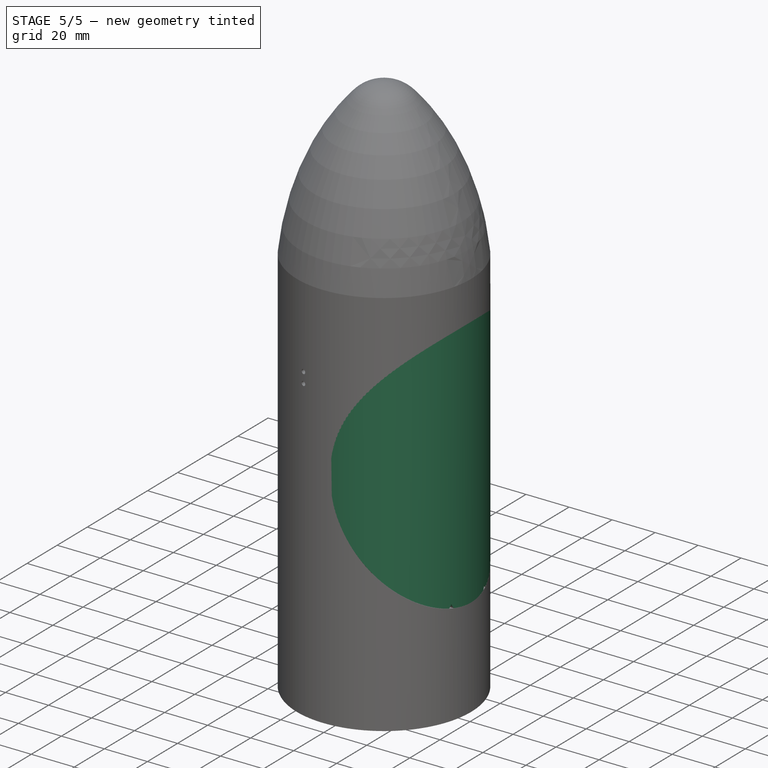
[diagram: stage 5 of 5 — iso view after this stage's code; geometry added in this stage tinted green]
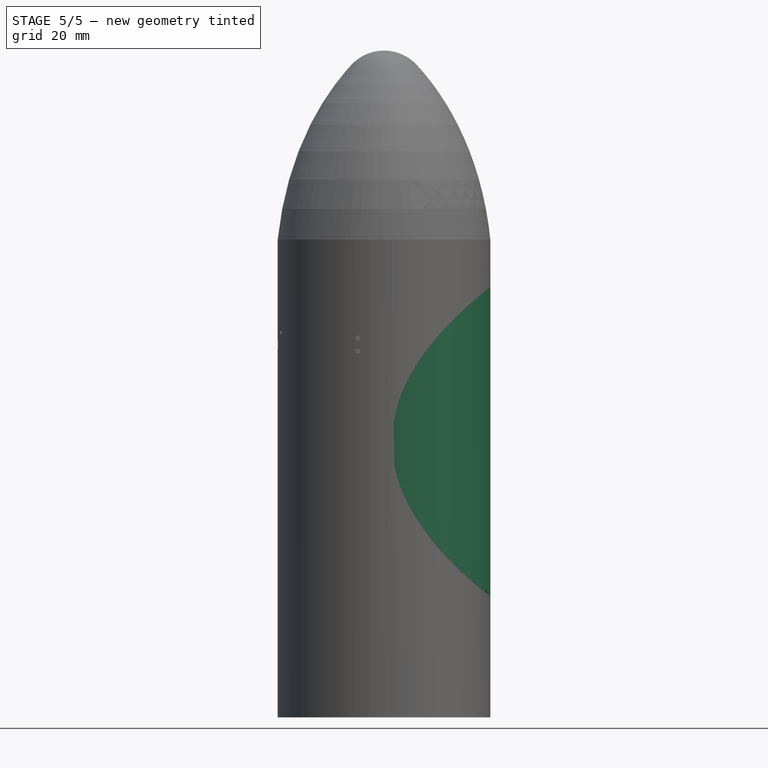
[diagram: stage 5 of 5 — front view after this stage's code; geometry added in this stage tinted green]
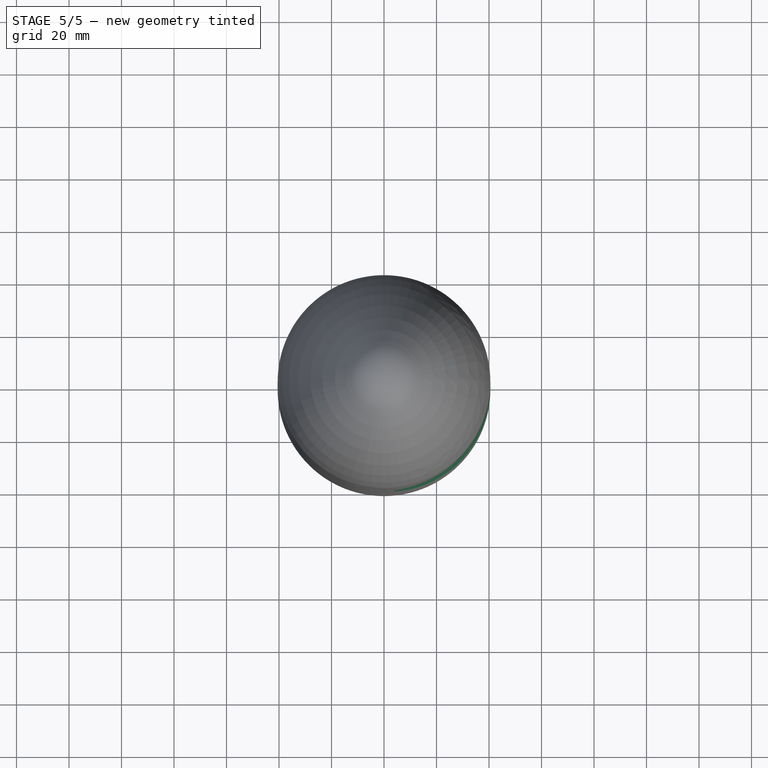
[diagram: stage 5 of 5 — top view after this stage's code; geometry added in this stage tinted green]
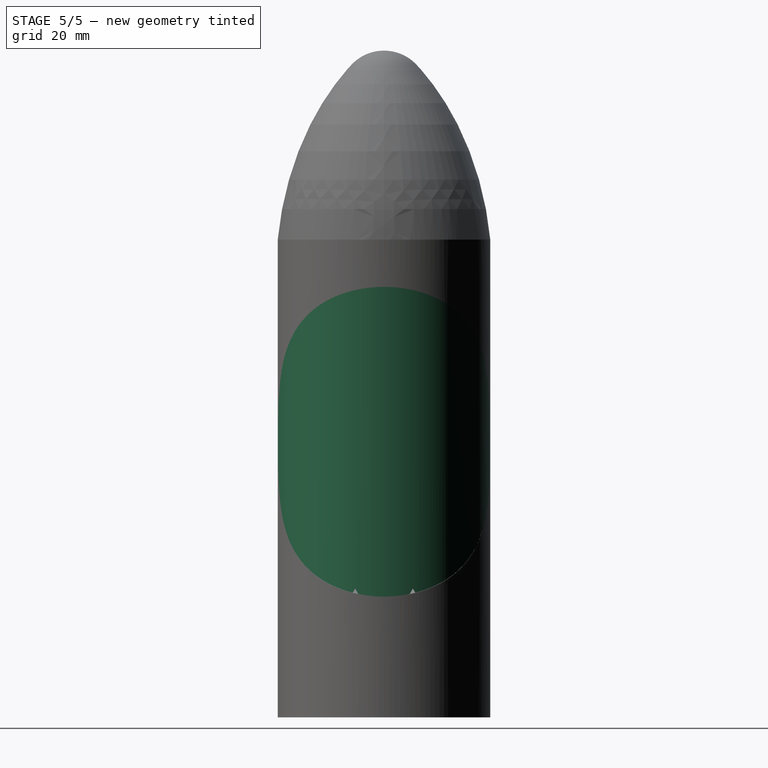
[diagram: stage 5 of 5 — right view after this stage's code; geometry added in this stage tinted green]
FEATURE [Sketcher::SketchObject] Sketch006
  Placement = pos=(0,0,0) rot=(1,0,0;1.5708rad)
  sketch-geometry (7):
    g0: ArcOfEllipse CenterX=38.7894 CenterY=104.999 CenterZ=0 NormalX=0 NormalY=0 NormalZ=1 MajorRadius=59.003 MinorRadius=55.0157 AngleXU=1.54693 StartAngle=3.17101 EndAngle=6.30495
    g1: LineSegment [constr] StartX=-16.2106 StartY=106.312 StartZ=0 EndX=93.7894 EndY=103.687 EndZ=0
    g2: GeomPoint [constr] X=39.2982 Y=126.315 Z=0
    g3: GeomPoint [constr] X=38.2807 Y=83.6834 Z=0
    g4: LineSegment [constr] StartX=39.0001 StartY=46 StartZ=0 EndX=39.0001 EndY=164 EndZ=0
    g5: LineSegment [constr] StartX=92.7894 StartY=105 StartZ=0 EndX=-15 EndY=105 EndZ=0
    g6: LineSegment StartX=39.0001 StartY=164 StartZ=0 EndX=39.0001 EndY=46 EndZ=0
  constraints (12):
    c: InternalAlignment(g1,g0)
    c: InternalAlignment(g2,g0)
    c: InternalAlignment(g3,g0)
    c: DistanceY(g0,g0) = 118
    c: DistanceX(g0,g1) = 55
    c: DistanceX(g5,g1) = 1
    c: DistanceY(g-1,g0) = 164
    c: Coincident(g4,g0)
    c: Coincident(g0,g4)
    c: Coincident(g6,g0)
    c: Coincident(g6,g0)
    c: Vertical(g6)
FEATURE [Part::Cylinder] Cylinder002  label="Zylinder"
  Angle = 360
  Height = 180
  Placement = pos=(-1,0,0) rot=(0,0,1;0rad)
  Radius = 40.5
FEATURE [PartDesign::Revolution] Revolution002
  Angle = 360
  Axis = (0,0,118)
  Base = (39.0001,0,46)
  Placement = pos=(0,0,0) rot=(1,0,0;1.5708rad)
  ReferenceAxis = -> Sketch006 [Axis1]
  Reversed = true
  Sketch = -> Sketch006
FEATURE [Part::MultiCommon] Common  label="Tür"
  Placement = pos=(1,0,0) rot=(0,0,1;0rad)
  Shapes = -> [Revolution002,Cylinder002]
FEATURE [Part::Cylinder] Cylinder003  label="Zylinder001"
  Angle = 360
  Height = 180
  Radius = 38.5
FEATURE [PartDesign::Fillet] Fillet001
  Placement = pos=(0,0,51) rot=(0,0,1;0rad)
  Radius = 1
FEATURE [PartDesign::Fillet] Fillet002
  Placement = pos=(35,-3,40) rot=(0,0,1;0rad)
  Radius = 1
FEATURE [Part::MultiFuse] Fusion003  label="Haken"
  Shapes = -> [Fillet001,Fillet002]
FEATURE [Sketcher::SketchObject] Sketch016
  Placement = pos=(1.2,0,105) rot=(0,0,1;0rad)
  sketch-geometry (11):
    g0: ArcOfEllipse CenterX=0 CenterY=0 CenterZ=0 NormalX=0 NormalY=0 NormalZ=1 MajorRadius=38.5911 MinorRadius=34.1654 AngleXU=1.5708 StartAngle=3.14159 EndAngle=6.28319
    g1: LineSegment [constr] StartX=0 StartY=38.5911 StartZ=0 EndX=0 EndY=-38.5911 EndZ=0
    g2: LineSegment [constr] StartX=-34.1654 StartY=0 StartZ=0 EndX=34.1654 EndY=0 EndZ=0
    g3: GeomPoint [constr] X=0 Y=17.9444 Z=0
    g4: GeomPoint [constr] X=0 Y=-17.9444 Z=0
    g5: LineSegment [constr] StartX=0 StartY=38.5477 StartZ=0 EndX=0 EndY=-38.5911 EndZ=0
    g6: ArcOfEllipse CenterX=0 CenterY=0 CenterZ=0 NormalX=0 NormalY=0 NormalZ=1 MajorRadius=38.5911 MinorRadius=38.5774 AngleXU=-1.5708 StartAngle=0 EndAngle=3.14159
    g7: LineSegment [constr] StartX=0 StartY=-38.5911 StartZ=0 EndX=0 EndY=38.5911 EndZ=0
    g8: LineSegment [constr] StartX=38.5774 StartY=0 StartZ=0 EndX=-38.5774 EndY=0 EndZ=0
    g9: GeomPoint [constr] X=0 Y=-1.02821 Z=0
    g10: GeomPoint [constr] X=0 Y=1.02821 Z=0
  constraints (14):
    c: InternalAlignment(g1-g4 -> g0) x4
    c: Coincident(g0,g-1)
    c: PointOnObject(g0,g-2)
    c: Vertical(g1)
    c: PointOnObject(g0,g-2)
    c: Vertical(g5)
    c: InternalAlignment(g7-g10 -> g6) x4
    c: Coincident(g6,g-1)
    c: Coincident(g6,g0)
    c: Coincident(g6,g0)
    c: Vertical(g7)
    c: Coincident(g0,g5)
    c: DistanceX(g-1,g8) = 38.5774
    c: DistanceY(g0,g-1) = 38.5911
FEATURE [PartDesign::Pad] Pad007
  Length = 3
  Length2 = 100
  Placement = pos=(1.2,0,105) rot=(0,0,1;0rad)
  Sketch = -> Sketch016
  Type = 0
FEATURE [Part::Cut] Cut017
  Base = -> Common
  Tool = -> Cylinder003
FEATURE [Sketcher::SketchObject] Sketch
  Placement = pos=(1.2,0,108) rot=(0,0,1;0rad)
  Support = -> Pad007 [Face4]
  sketch-geometry (2):
    g0: Circle CenterX=35.6 CenterY=2.5 CenterZ=0 NormalX=0 NormalY=0 NormalZ=1 Radius=1
    g1: Circle CenterX=35.6 CenterY=-2.5 CenterZ=0 NormalX=0 NormalY=0 NormalZ=1 Radius=1
  constraints (5):
    c: Symmetric(g1,g0,g-1)
    c: DistanceY(g1,g0) = 5
    c: Equal(g0,g1)
    c: Radius(g0) = 1
    c: DistanceX(g-1,g0) = 35.6
FEATURE [PartDesign::Pocket] Pocket
  Length = 5
  Placement = pos=(1.2,0,105) rot=(0,0,1;0rad)
  Sketch = -> Sketch
  Type = 0
FEATURE [Part::Fillet] Fillet003
  Base = -> Pocket
  Edges = 2 edges r=0.5: [Edge3,Edge4]
FEATURE [Part::MultiFuse] Fusion011  label="Gehäuse"
  Shapes = -> [Cut021,Fusion]
FEATURE [Sketcher::SketchObject] Sketch018
  Placement = pos=(34,0,0) rot=(0.57735,0.57735,0.57735;2.0944rad)
  sketch-geometry (6):
    g0: LineSegment StartX=-12.5 StartY=46.5 StartZ=0 EndX=-11 EndY=49.0981 EndZ=0
    g1: LineSegment StartX=-11 StartY=49.0981 StartZ=0 EndX=-9.5 EndY=46.5 EndZ=0
    g2: LineSegment StartX=-9.5 StartY=46.5 StartZ=0 EndX=-12.5 EndY=46.5 EndZ=0
    g3: LineSegment StartX=9.5 StartY=46.5 StartZ=0 EndX=11 EndY=49.0981 EndZ=0
    g4: LineSegment StartX=11 StartY=49.0981 StartZ=0 EndX=12.5 EndY=46.5 EndZ=0
    g5: LineSegment StartX=12.5 StartY=46.5 StartZ=0 EndX=9.5 EndY=46.5 EndZ=0
  constraints (17):
    c: Coincident(g0,g1)
    c: Coincident(g1,g2)
    c: Coincident(g2,g0)
    c: Horizontal(g2)
    c: Equal(g2,g0)
    c: Equal(g0,g1)
    c: DistanceX(g2,g2) = 3
    c: Coincident(g3,g4)
    c: Coincident(g4,g5)
    c: Coincident(g5,g3)
    c: Equal(g4,g3)
    c: Equal(g3,g5)
    c: Horizontal(g5)
    c: Equal(g5,g2)
    c: Symmetric(g3,g1,g-2)
    c: DistanceY(g-1,g1) = 46.5
    c: DistanceX(g1,g-1) = 9.5
FEATURE [PartDesign::Pad] Pad008  label="Ritze"
  Length = 10
  Length2 = 100
  Placement = pos=(34,0,0) rot=(0.57735,0.57735,0.57735;2.0944rad)
  Sketch = -> Sketch018
  Type = 0
FEATURE [Part::Cut] Cut023
  Base = -> Cut017
  Tool = -> Pad008
FEATURE [Part::MultiFuse] Fusion013  label="Fallschirmtüre"
  Shapes = -> [Cut023,Fusion003,Fillet003]
FEATURE [Part::MultiFuse] Fusion014  label="GehäusemitGewinde"
  Shapes = -> [Cut001,Fusion011]
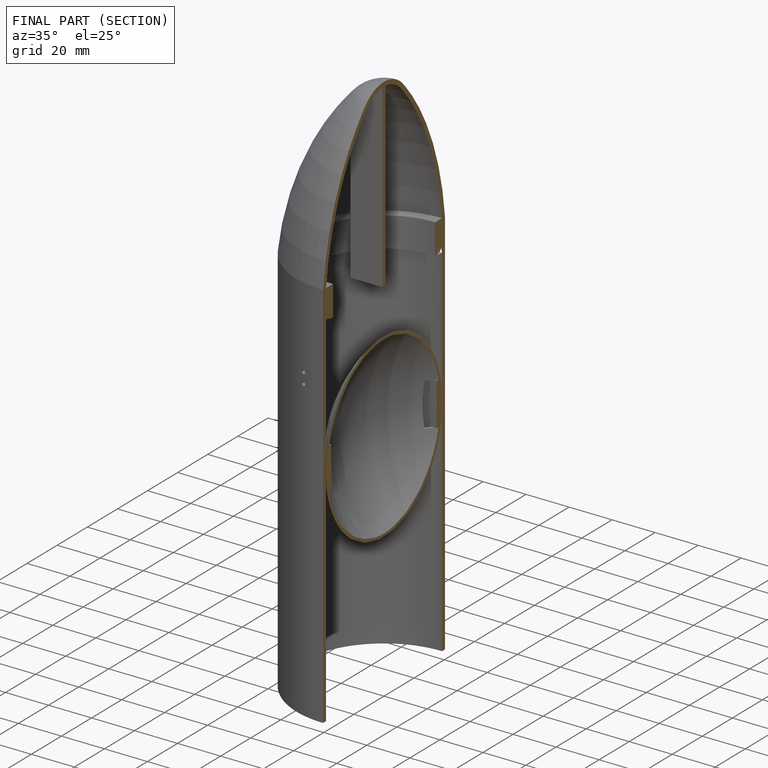
[diagram: finished part — half-section view (interior)]
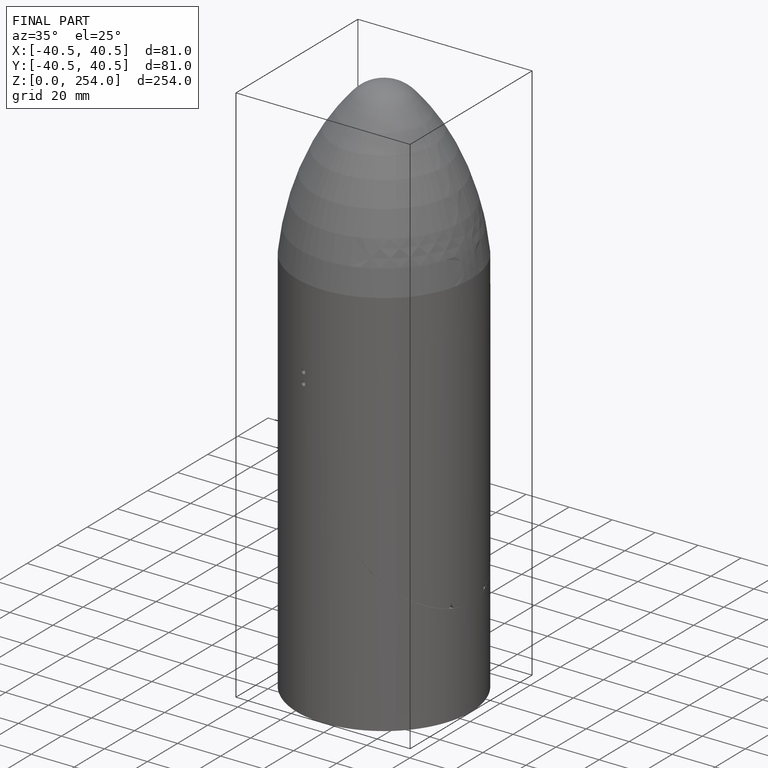
[diagram: finished part — iso view with bounding-box wireframe]
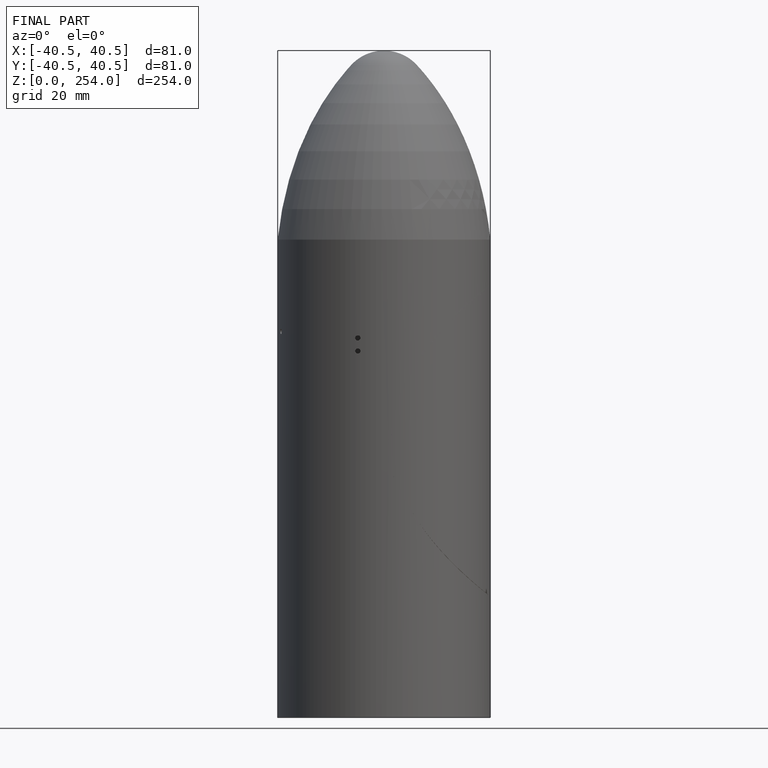
[diagram: finished part — front view with bounding-box wireframe]
